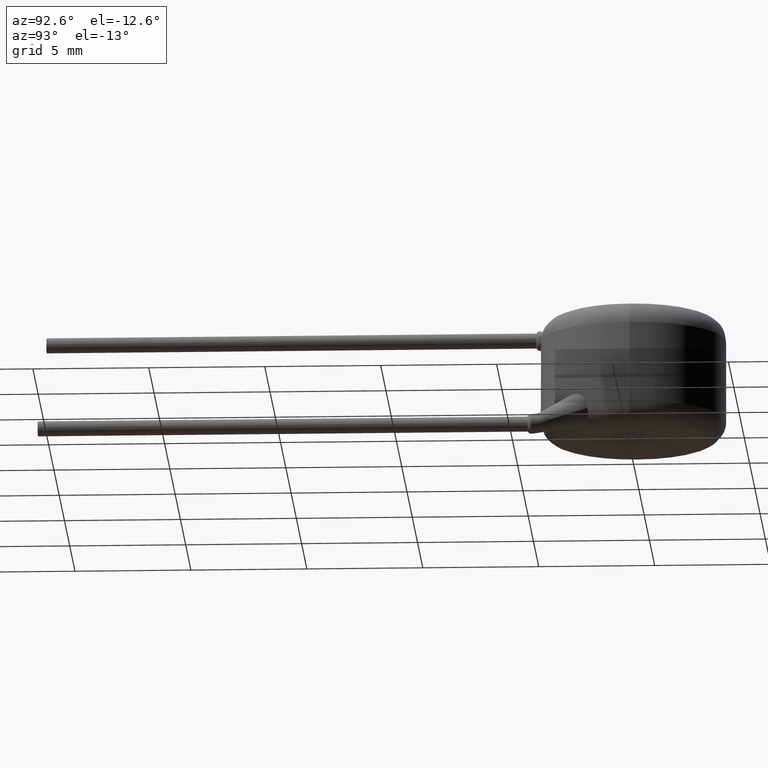
[diagram: clean part render]
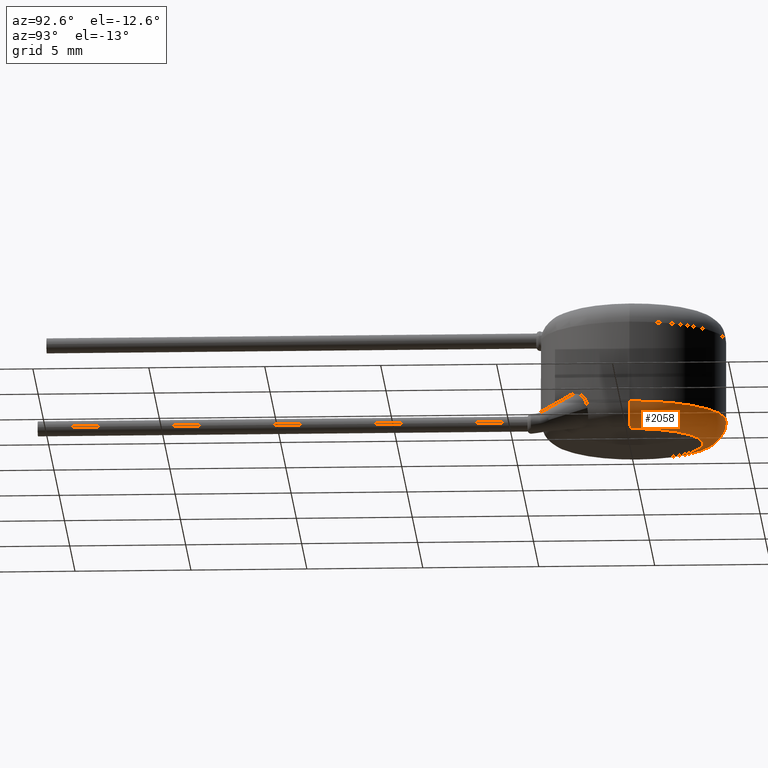
[diagram: same view with one face highlighted and labeled with its STEP entity id]
A machine part, auxiliary view. The second image highlights one B-rep face of the part: STEP entity #2058.
In plain terms, the highlighted toroidal blend (fillet) surface has major radius 3 mm and minor (blend) radius 1 mm.
Its self-contained STEP definition (entity closure, byte-faithful):
#34 = CARTESIAN_POINT ( 'NONE',  ( 3.000000000000000000, 0.0000000000000000000, 0.0000000000000000000 ) ) ;
#67 = AXIS2_PLACEMENT_3D ( 'NONE', #3790, #3780, #1839 ) ;
#162 = AXIS2_PLACEMENT_3D ( 'NONE', #2472, #2455, #2802 ) ;
#178 = CIRCLE ( 'NONE', #3603, 4.000000000000000000 ) ;
#201 = VERTEX_POINT ( 'NONE', #433 ) ;
#246 = CARTESIAN_POINT ( 'NONE',  ( -4.000000000000000000, 0.0000000000000000000, 1.000000000000000000 ) ) ;
#250 = EDGE_CURVE ( 'NONE', #201, #1764, #648, .T. ) ;
#421 = CIRCLE ( 'NONE', #1786, 1.000000000000000000 ) ;
#433 = CARTESIAN_POINT ( 'NONE',  ( -3.000000000000000000, 4.286263797015736600E-016, 0.0000000000000000000 ) ) ;
#648 = CIRCLE ( 'NONE', #67, 3.000000000000000000 ) ;
#661 = EDGE_CURVE ( 'NONE', #3223, #3675, #178, .T. ) ;
#795 = FACE_OUTER_BOUND ( 'NONE', #2919, .T. ) ;
#818 = ORIENTED_EDGE ( 'NONE', *, *, #3189, .T. ) ;
#1057 = DIRECTION ( 'NONE',  ( 1.000000000000000000, 0.0000000000000000000, 0.0000000000000000000 ) ) ;
#1240 = ORIENTED_EDGE ( 'NONE', *, *, #2213, .F. ) ;
#1301 = DIRECTION ( 'NONE',  ( -1.000000000000000000, 1.224646799147353000E-016, 0.0000000000000000000 ) ) ;
#1686 = AXIS2_PLACEMENT_3D ( 'NONE', #4213, #2627, #2582 ) ;
#1764 = VERTEX_POINT ( 'NONE', #34 ) ;
#1786 = AXIS2_PLACEMENT_3D ( 'NONE', #3242, #2666, #1301 ) ;
#1812 = ORIENTED_EDGE ( 'NONE', *, *, #250, .F. ) ;
#1839 = DIRECTION ( 'NONE',  ( 1.000000000000000000, 0.0000000000000000000, 0.0000000000000000000 ) ) ;
#2058 = ADVANCED_FACE ( 'NONE', ( #795 ), #3062, .T. ) ;
#2213 = EDGE_CURVE ( 'NONE', #1764, #3223, #2807, .T. ) ;
#2455 = DIRECTION ( 'NONE',  ( 0.0000000000000000000, 0.0000000000000000000, 1.000000000000000000 ) ) ;
#2472 = CARTESIAN_POINT ( 'NONE',  ( 0.0000000000000000000, 0.0000000000000000000, 1.000000000000000000 ) ) ;
#2582 = DIRECTION ( 'NONE',  ( 0.0000000000000000000, 0.0000000000000000000, -1.000000000000000000 ) ) ;
#2627 = DIRECTION ( 'NONE',  ( 0.0000000000000000000, -1.000000000000000000, 0.0000000000000000000 ) ) ;
#2666 = DIRECTION ( 'NONE',  ( 1.224646799147353200E-016, 1.000000000000000000, -0.0000000000000000000 ) ) ;
#2802 = DIRECTION ( 'NONE',  ( 1.000000000000000000, 0.0000000000000000000, 0.0000000000000000000 ) ) ;
#2807 = CIRCLE ( 'NONE', #1686, 1.000000000000000000 ) ;
#2886 = ORIENTED_EDGE ( 'NONE', *, *, #661, .F. ) ;
#2919 = EDGE_LOOP ( 'NONE', ( #1812, #818, #2886, #1240 ) ) ;
#3061 = DIRECTION ( 'NONE',  ( 0.0000000000000000000, 0.0000000000000000000, 1.000000000000000000 ) ) ;
#3062 = TOROIDAL_SURFACE ( 'NONE', #162, 3.000000000000000000, 1.000000000000000000 ) ;
#3189 = EDGE_CURVE ( 'NONE', #201, #3675, #421, .T. ) ;
#3223 = VERTEX_POINT ( 'NONE', #4273 ) ;
#3242 = CARTESIAN_POINT ( 'NONE',  ( -3.000000000000000000, 3.673940397442059900E-016, 1.000000000000000000 ) ) ;
#3603 = AXIS2_PLACEMENT_3D ( 'NONE', #4042, #3061, #1057 ) ;
#3675 = VERTEX_POINT ( 'NONE', #246 ) ;
#3780 = DIRECTION ( 'NONE',  ( -0.0000000000000000000, -0.0000000000000000000, -1.000000000000000000 ) ) ;
#3790 = CARTESIAN_POINT ( 'NONE',  ( 0.0000000000000000000, 0.0000000000000000000, 0.0000000000000000000 ) ) ;
#4042 = CARTESIAN_POINT ( 'NONE',  ( 0.0000000000000000000, 0.0000000000000000000, 1.000000000000000000 ) ) ;
#4213 = CARTESIAN_POINT ( 'NONE',  ( 3.000000000000000000, 0.0000000000000000000, 1.000000000000000000 ) ) ;
#4273 = CARTESIAN_POINT ( 'NONE',  ( 4.000000000000000000, 4.898587196589412800E-016, 1.000000000000000000 ) ) ;